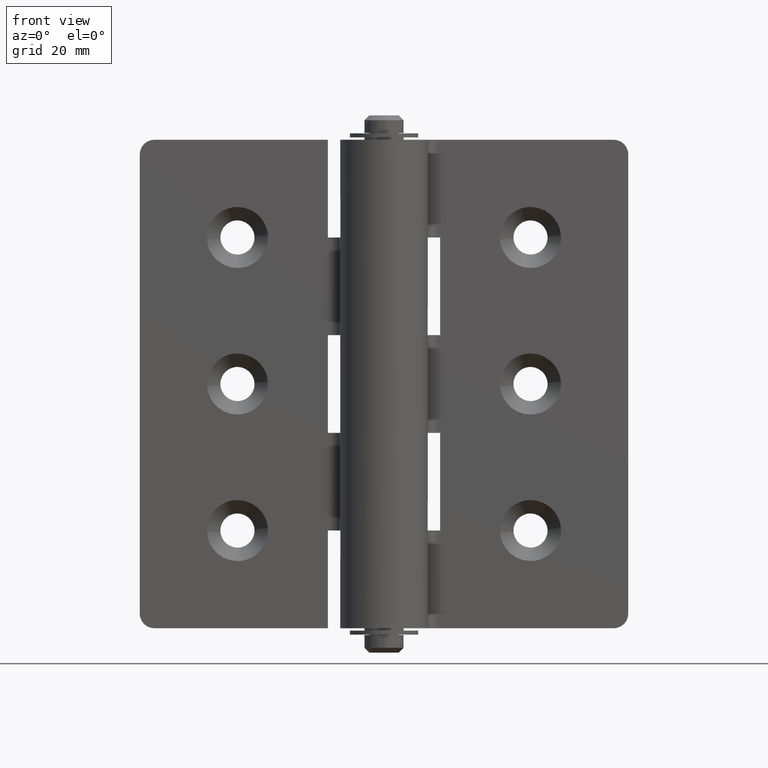
[diagram: clean part render]
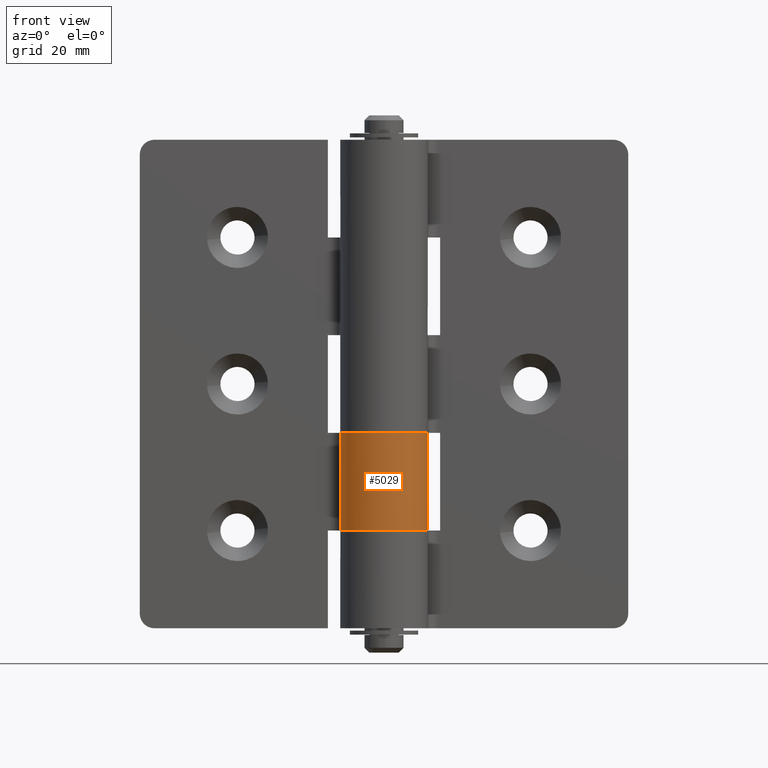
[diagram: same view with one face highlighted and labeled with its STEP entity id]
A machine part, front view. The second image highlights one B-rep face of the part: STEP entity #5029.
In plain terms, the highlighted face is a freeform B-spline surface patch.
Its self-contained STEP definition (entity closure, byte-faithful):
#4500=CARTESIAN_POINT('',(0.0,9.0,40.0));
#4501=VERTEX_POINT('',#4500);
#4507=CARTESIAN_POINT('',(0.0,9.0,20.0));
#4508=VERTEX_POINT('',#4507);
#4509=CARTESIAN_POINT('',(0.0,9.0,40.0));
#4510=CARTESIAN_POINT('',(0.0,9.0,20.0));
#4511=QUASI_UNIFORM_CURVE('',1,(#4509,#4510),.UNSPECIFIED.,.F.,.U.);
#4512=EDGE_CURVE('',#4501,#4508,#4511,.T.);
#4714=CARTESIAN_POINT('',(-8.962732609297762,0.818181815711038,40.0));
#4715=VERTEX_POINT('',#4714);
#4729=CARTESIAN_POINT('',(-8.962732609297762,0.818181815711038,40.0));
#4730=CARTESIAN_POINT('',(-9.006251886759880,0.341715357749412,40.000000000000021));
#4731=CARTESIAN_POINT('',(-9.018370550036876,-0.731138803429619,39.999999999999957));
#4732=CARTESIAN_POINT('',(-8.778684433083457,-2.153434855655825,40.000000000000007));
#4733=CARTESIAN_POINT('',(-8.290372980636567,-3.595718279237218,40.000000000000050));
#4734=CARTESIAN_POINT('',(-7.688439465828263,-4.748391729216920,39.999999999999922));
#4735=CARTESIAN_POINT('',(-6.834172451602541,-5.905257735295363,40.000000000000007));
#4736=CARTESIAN_POINT('',(-5.938945911827722,-6.807564753742009,40.000000000000298));
#4737=CARTESIAN_POINT('',(-4.920283529989367,-7.564736151823095,39.999999999999773));
#4738=CARTESIAN_POINT('',(-3.888208481707884,-8.145530906698799,40.000000000000853));
#4739=CARTESIAN_POINT('',(-2.683541874619342,-8.628449520851957,39.999999999998423));
#4740=CARTESIAN_POINT('',(-1.224732507379140,-8.964578491900562,40.000000000003403));
#4741=CARTESIAN_POINT('',(0.187090598703471,-9.032633829073140,39.999999999995367));
#4742=CARTESIAN_POINT('',(1.505142429779943,-8.897768608693328,40.000000000002643));
#4743=CARTESIAN_POINT('',(2.879237758610408,-8.578214205746564,39.999999999998188));
#4744=CARTESIAN_POINT('',(4.335144644818215,-7.950883673231512,40.000000000001073));
#4745=CARTESIAN_POINT('',(5.827988176462693,-6.931406466135070,39.999999999998813));
#4746=CARTESIAN_POINT('',(6.902338662618348,-5.843937633202806,39.999999999999552));
#4747=CARTESIAN_POINT('',(7.872157701271813,-4.457624320554569,39.999999999999048));
#4748=CARTESIAN_POINT('',(8.555304956173412,-2.994850085604649,40.000000000003617));
#4749=CARTESIAN_POINT('',(8.923309448228631,-1.426069420083619,39.999999999994827));
#4750=CARTESIAN_POINT('',(9.040616768550839,0.120381114631733,40.000000000002572));
#4751=CARTESIAN_POINT('',(8.913098234837641,1.557776676296277,39.999999999994252));
#4752=CARTESIAN_POINT('',(8.518705650357680,3.000733183522408,39.999999999997563));
#4753=CARTESIAN_POINT('',(7.897190909691775,4.422652822607953,40.000000000002359));
#4754=CARTESIAN_POINT('',(6.992138106056538,5.759531167550558,39.999999999999147));
#4755=CARTESIAN_POINT('',(5.745479345652488,6.989475301228335,40.000000000000377));
#4756=CARTESIAN_POINT('',(4.369338362491044,7.931862798024010,39.999999999997883));
#4757=CARTESIAN_POINT('',(2.889647529723584,8.571617629386644,40.000000000006530));
#4758=CARTESIAN_POINT('',(1.407238095131955,8.925749549850593,39.999999999984638));
#4759=CARTESIAN_POINT('',(0.478467678487177,9.000035321347383,40.000000000024912));
#4760=CARTESIAN_POINT('',(0.0,9.0,40.0));
#4761=B_SPLINE_CURVE_WITH_KNOTS('',3,(#4729,#4730,#4731,#4732,#4733,#4734,#4735,#4736,#4737,#4738,#4739,#4740,#4741,#4742,#4743,#4744,#4745,#4746,#4747,#4748,#4749,#4750,#4751,#4752,#4753,#4754,#4755,#4756,#4757,#4758,#4759,#4760),.UNSPECIFIED.,.F.,.U.,(4,1,1,1,1,1,1,1,1,1,1,1,1,1,1,1,1,1,1,1,1,1,1,1,1,1,1,1,1,4),(0.000000359569832,1.435358040565696,3.208526606815738,4.306206581016689,5.994925130070534,7.092601278835190,8.612446760358480,9.794569747314228,10.892131415858209,12.158683085245579,13.678523376836690,15.367251032874160,16.380489841210249,17.647038181953640,19.589044884798309,21.108922389825761,23.050888231794190,24.148537968442891,26.174999422579951,27.863717702690650,28.961394894148778,30.818998826110789,32.169953586195447,33.436404809184403,35.462899510060353,36.982741924477359,38.671460204588321,40.444611567654313,41.795571393608277,43.230972315481999),.UNSPECIFIED.);
#4762=EDGE_CURVE('',#4715,#4501,#4761,.T.);
#4808=CARTESIAN_POINT('',(-8.962732609297762,0.818181815711038,20.0));
#4809=VERTEX_POINT('',#4808);
#4810=CARTESIAN_POINT('',(0.0,9.0,20.0));
#4811=CARTESIAN_POINT('',(0.562892634929691,9.000071705357939,19.999999999999961));
#4812=CARTESIAN_POINT('',(1.491651473729646,8.912558619285660,20.000000000000039));
#4813=CARTESIAN_POINT('',(2.803516292394335,8.579523687732548,20.0));
#4814=CARTESIAN_POINT('',(4.008860239638944,8.098182250220738,20.000000000000021));
#4815=CARTESIAN_POINT('',(5.078154460811257,7.464809264311029,19.999999999999918));
#4816=CARTESIAN_POINT('',(6.137811709304294,6.623896273077183,20.000000000000028));
#4817=CARTESIAN_POINT('',(7.207806355087119,5.496734284338305,20.000000000000039));
#4818=CARTESIAN_POINT('',(8.145348294517488,3.977375560972796,19.999999999999801));
#4819=CARTESIAN_POINT('',(8.701765122550171,2.435815387491491,20.000000000001510));
#4820=CARTESIAN_POINT('',(9.013589064450084,0.829851978447599,19.999999999994941));
#4821=CARTESIAN_POINT('',(9.028207112122207,-0.842088697274948,20.000000000008210));
#4822=CARTESIAN_POINT('',(8.698578033239389,-2.448247774089489,19.999999999997119));
#4823=CARTESIAN_POINT('',(8.176113408869853,-3.848426435075704,20.000000000001339));
#4824=CARTESIAN_POINT('',(7.469875280235140,-5.105330696726933,19.999999999998501));
#4825=CARTESIAN_POINT('',(6.372893448229612,-6.433986320233966,20.000000000002121));
#4826=CARTESIAN_POINT('',(4.951781231983892,-7.602902257513505,19.999999999998600));
#4827=CARTESIAN_POINT('',(3.434921352466707,-8.369172688350501,20.000000000000529));
#4828=CARTESIAN_POINT('',(2.031634076853539,-8.794322765644493,19.999999999999769));
#4829=CARTESIAN_POINT('',(0.834454919699451,-8.991120734025149,20.000000000000110));
#4830=CARTESIAN_POINT('',(-0.519532345374068,-9.021167530302790,20.000000000001510));
#4831=CARTESIAN_POINT('',(-2.087424942241674,-8.812082975524012,19.999999999996199));
#4832=CARTESIAN_POINT('',(-3.589739013229945,-8.305977492136982,20.000000000002739));
#4833=CARTESIAN_POINT('',(-5.171689351838530,-7.435194017538355,19.999999999999162));
#4834=CARTESIAN_POINT('',(-6.412535045371151,-6.399671636453413,20.000000000000171));
#4835=CARTESIAN_POINT('',(-7.386391038751523,-5.190713910346136,19.999999999999979));
#4836=CARTESIAN_POINT('',(-8.055789418791832,-4.079705583444421,19.999999999999918));
#4837=CARTESIAN_POINT('',(-8.541280986833334,-2.936174093571584,19.999999999999911));
#4838=CARTESIAN_POINT('',(-8.977179596028444,-1.271726885281190,20.000000000000799));
#4839=CARTESIAN_POINT('',(-9.039836430807837,-0.022684609589216,19.999999999999218));
#4840=CARTESIAN_POINT('',(-8.962732609297762,0.818181815711038,20.0));
#4841=B_SPLINE_CURVE_WITH_KNOTS('',3,(#4810,#4811,#4812,#4813,#4814,#4815,#4816,#4817,#4818,#4819,#4820,#4821,#4822,#4823,#4824,#4825,#4826,#4827,#4828,#4829,#4830,#4831,#4832,#4833,#4834,#4835,#4836,#4837,#4838,#4839,#4840),.UNSPECIFIED.,.F.,.U.,(4,1,1,1,1,1,1,1,1,1,1,1,1,1,1,1,1,1,1,1,1,1,1,1,1,1,1,1,4),(0.000000240166010,1.688666714890374,2.786372186012237,4.052899475608029,5.572745718697632,6.501538828956022,8.105835032794971,10.216698733437010,11.820919673529399,13.003062924444750,15.113941331846050,16.802669357339660,17.900347703777818,19.589044846046669,21.108922357390771,23.050888207380240,25.077322214105241,26.174999410987759,27.441539457969061,28.708085801905849,30.227931042744430,32.169953599322987,33.436404827507751,35.631755990153202,36.982741957407022,38.080410913166801,39.515828348602327,40.697921707574700,43.230972373449632),.UNSPECIFIED.);
#4842=EDGE_CURVE('',#4508,#4809,#4841,.T.);
#4997=CARTESIAN_POINT('',(-8.923003752364291,1.174735729980463,40.500000000000007));
#4998=CARTESIAN_POINT('',(-8.923003752364291,1.174735729980463,19.487499999999990));
#4999=CARTESIAN_POINT('',(-10.182753591743344,-8.394014293487834,40.500000000000014));
#5000=CARTESIAN_POINT('',(-10.182753591743344,-8.394014293487834,19.487500000000001));
#5001=CARTESIAN_POINT('',(-0.549436855813711,-8.983213185796801,40.500000000000007));
#5002=CARTESIAN_POINT('',(-0.549436855813711,-8.983213185796801,19.487499999999990));
#5003=CARTESIAN_POINT('',(9.083879880115921,-9.572412078105767,40.500000000000014));
#5004=CARTESIAN_POINT('',(9.083879880115921,-9.572412078105767,19.487500000000001));
#5005=CARTESIAN_POINT('',(8.999657307577541,0.078538819485364,40.500000000000007));
#5006=CARTESIAN_POINT('',(8.999657307577541,0.078538819485364,19.487499999999990));
#5007=CARTESIAN_POINT('',(8.915434735039160,9.729489717076497,40.500000000000014));
#5008=CARTESIAN_POINT('',(8.915434735039160,9.729489717076497,19.487500000000001));
#5009=CARTESIAN_POINT('',(-0.706131861550602,8.972256003598153,40.500000000000007));
#5010=CARTESIAN_POINT('',(-0.706131861550602,8.972256003598153,19.487499999999990));
#5018=(BOUNDED_SURFACE()B_SPLINE_SURFACE(1,2,((#4997,#4999,#5001,#5003,#5005,#5007,#5009),(#4998,#5000,#5002,#5004,#5006,#5008,#5010)),.UNSPECIFIED.,.F.,.F.,.U.)B_SPLINE_SURFACE_WITH_KNOTS((2,2),(3,2,2,3),(0.0,21.012500000000010),(0.0,15.653245498593609,31.306490997187218,46.959736495780831),.UNSPECIFIED.)GEOMETRIC_REPRESENTATION_ITEM()RATIONAL_B_SPLINE_SURFACE(((1.0,0.681998360062499,1.0,0.681998360062499,1.0,0.681998360062499,1.0),(1.0,0.681998360062499,1.0,0.681998360062499,1.0,0.681998360062499,1.0)))REPRESENTATION_ITEM('')SURFACE());
#5019=ORIENTED_EDGE('',*,*,#4512,.F.);
#5020=ORIENTED_EDGE('',*,*,#4762,.F.);
#5021=CARTESIAN_POINT('',(-8.962732609297762,0.818181815711038,40.0));
#5022=CARTESIAN_POINT('',(-8.962732609297762,0.818181815711038,20.0));
#5023=QUASI_UNIFORM_CURVE('',1,(#5021,#5022),.UNSPECIFIED.,.F.,.U.);
#5024=EDGE_CURVE('',#4715,#4809,#5023,.T.);
#5025=ORIENTED_EDGE('',*,*,#5024,.T.);
#5026=ORIENTED_EDGE('',*,*,#4842,.F.);
#5027=EDGE_LOOP('',(#5019,#5020,#5025,#5026));
#5028=FACE_OUTER_BOUND('',#5027,.T.);
#5029=ADVANCED_FACE('',(#5028),#5018,.T.);